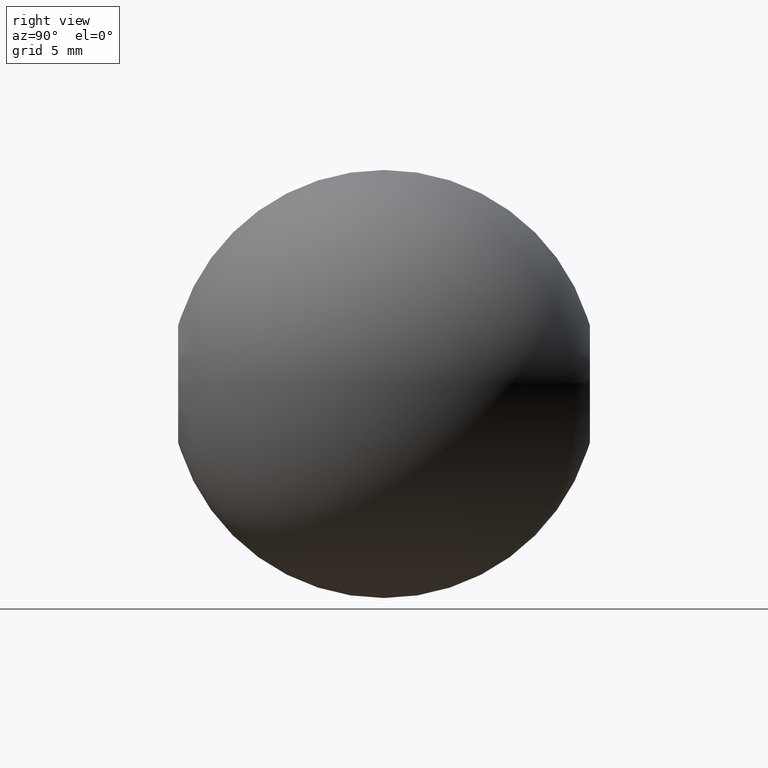
[diagram: clean part render]
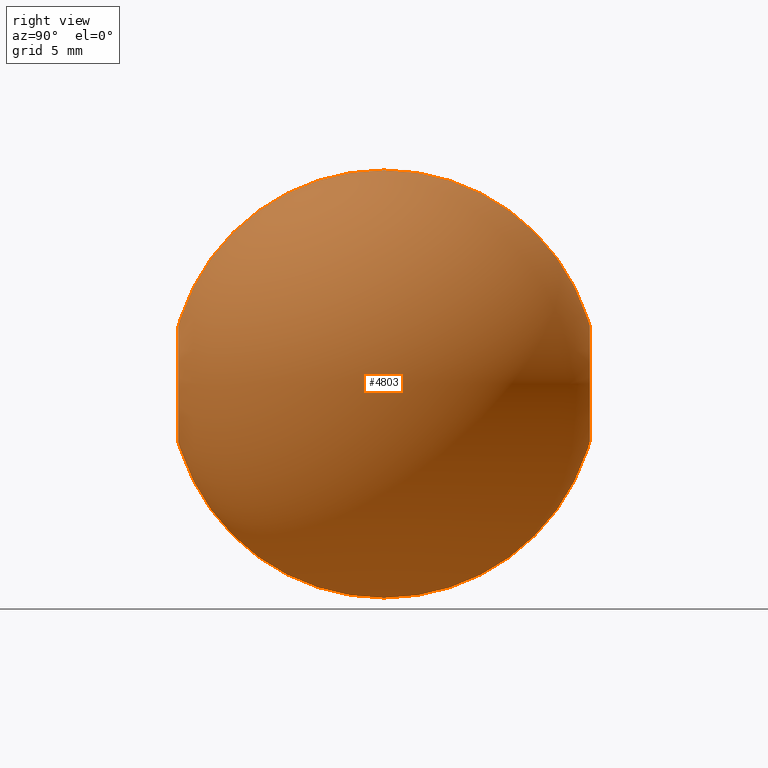
[diagram: same view with one face highlighted and labeled with its STEP entity id]
A machine part, right view. The second image highlights one B-rep face of the part: STEP entity #4803.
In plain terms, the highlighted spherical surface has radius 11 mm.
Its self-contained STEP definition (entity closure, byte-faithful):
#20 = ORIENTED_EDGE ( 'NONE', *, *, #5232, .T. ) ;
#74 = SPHERICAL_SURFACE ( 'NONE', #3037, 11.00000000000000000 ) ;
#89 = DIRECTION ( 'NONE',  ( 1.000000000000000000, 0.0000000000000000000, 0.0000000000000000000 ) ) ;
#754 = DIRECTION ( 'NONE',  ( -0.0000000000000000000, 1.000000000000000000, -0.0000000000000000000 ) ) ;
#827 = VERTEX_POINT ( 'NONE', #7172 ) ;
#1792 = CARTESIAN_POINT ( 'NONE',  ( 1.836970198721029600E-015, -10.58300524425836100, 3.000000000000000900 ) ) ;
#2411 = DIRECTION ( 'NONE',  ( 0.0000000000000000000, 0.0000000000000000000, 1.000000000000000000 ) ) ;
#2741 = EDGE_LOOP ( 'NONE', ( #2974 ) ) ;
#2974 = ORIENTED_EDGE ( 'NONE', *, *, #5469, .F. ) ;
#3037 = AXIS2_PLACEMENT_3D ( 'NONE', #7528, #4850, #89 ) ;
#4803 = ADVANCED_FACE ( 'NONE', ( #5393, #8440 ), #74, .T. ) ;
#4850 = DIRECTION ( 'NONE',  ( 0.0000000000000000000, 0.0000000000000000000, -1.000000000000000000 ) ) ;
#5232 = EDGE_CURVE ( 'NONE', #6140, #6140, #5386, .T. ) ;
#5368 = DIRECTION ( 'NONE',  ( 0.0000000000000000000, 0.0000000000000000000, 1.000000000000000000 ) ) ;
#5386 = CIRCLE ( 'NONE', #8449, 3.000000000000000900 ) ;
#5393 = FACE_OUTER_BOUND ( 'NONE', #2741, .T. ) ;
#5448 = CARTESIAN_POINT ( 'NONE',  ( 1.836970198721029600E-015, 10.58300524425836100, 0.0000000000000000000 ) ) ;
#5469 = EDGE_CURVE ( 'NONE', #827, #827, #7581, .T. ) ;
#5593 = CARTESIAN_POINT ( 'NONE',  ( 1.836970198721029600E-015, -10.58300524425836100, 0.0000000000000000000 ) ) ;
#5716 = EDGE_LOOP ( 'NONE', ( #20 ) ) ;
#6140 = VERTEX_POINT ( 'NONE', #1792 ) ;
#7106 = DIRECTION ( 'NONE',  ( -0.0000000000000000000, 1.000000000000000000, -0.0000000000000000000 ) ) ;
#7172 = CARTESIAN_POINT ( 'NONE',  ( 1.836970198721029600E-015, 10.58300524425836100, 3.000000000000000900 ) ) ;
#7528 = CARTESIAN_POINT ( 'NONE',  ( 0.0000000000000000000, 0.0000000000000000000, 0.0000000000000000000 ) ) ;
#7581 = CIRCLE ( 'NONE', #7651, 3.000000000000000900 ) ;
#7651 = AXIS2_PLACEMENT_3D ( 'NONE', #5448, #754, #5368 ) ;
#8440 = FACE_OUTER_BOUND ( 'NONE', #5716, .T. ) ;
#8449 = AXIS2_PLACEMENT_3D ( 'NONE', #5593, #7106, #2411 ) ;